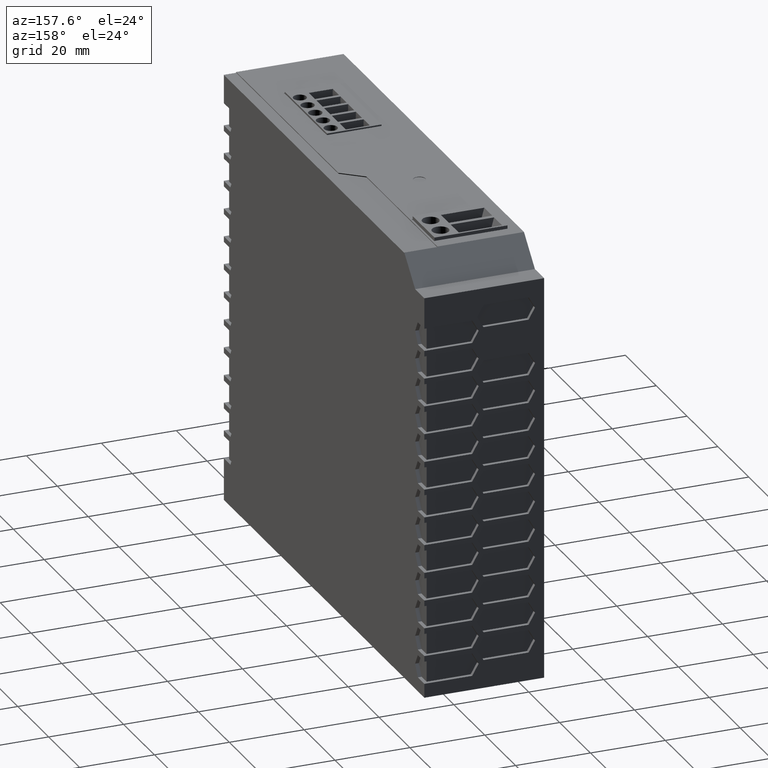
[diagram: clean part render]
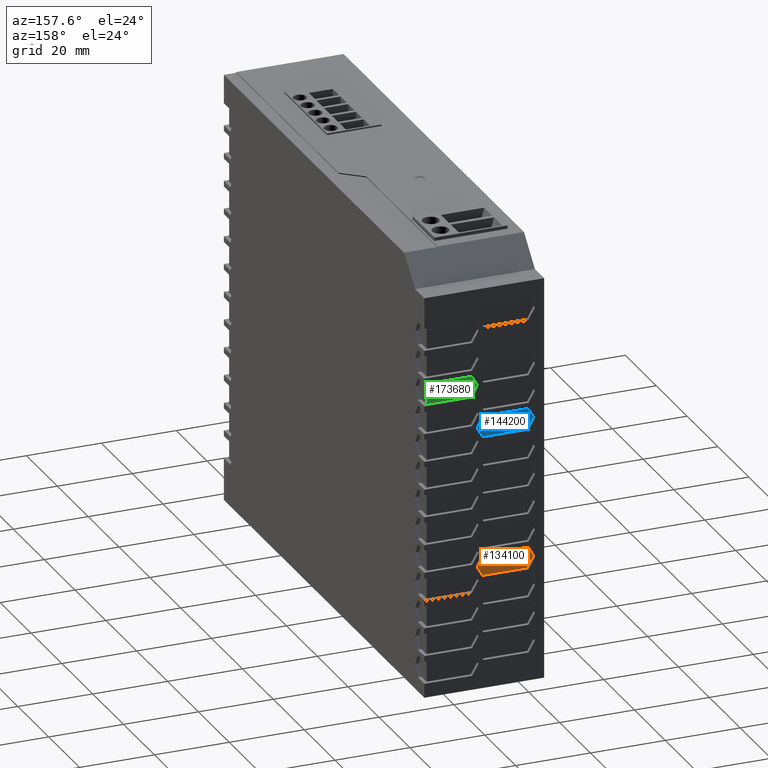
[diagram: same view with three faces highlighted in distinct colors, each labeled with its STEP entity id]
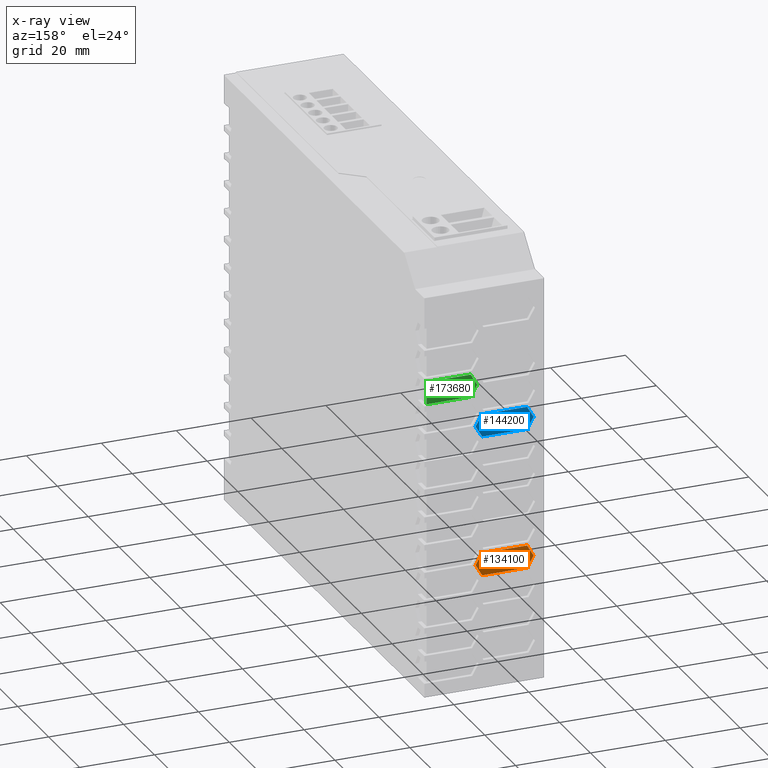
[diagram: x-ray of the same camera — body ghosted, the three highlighted faces saturated]
A machine part, auxiliary view with three faces highlighted in distinct colors.
The next image is the same camera in x-ray (body ghosted, the three faces saturated) — at least one of them is partly hidden behind the body in this view.
Their STEP definitions:

[orange] entity #134100 — the highlighted planar face has unit normal (0, 1, 0).
#125470=CARTESIAN_POINT('',(24.1298974596216,64.,-58.3276047807973));
#125480=DIRECTION('',(0.,1.,-0.));
#125490=DIRECTION('',(-1.,0.,0.));
#125500=AXIS2_PLACEMENT_3D('',#125470,#125480,#125490);
#125510=PLANE('',#125500);
#133600=CARTESIAN_POINT('',(-29.1369845665809,64.,1.));
#133610=DIRECTION('',(0.500000000000017,-0.,-0.866025403784429));
#133620=VECTOR('',#133610,1.);
#133630=LINE('',#133600,#133620);
#133640=CARTESIAN_POINT('',(16.200949192431,64.,-77.5276047807973));
#133650=VERTEX_POINT('',#133640);
#133660=CARTESIAN_POINT('',(17.933,64.,-80.5276047807973));
#133670=VERTEX_POINT('',#133660);
#133680=EDGE_CURVE('',#133650,#133670,#133630,.T.);
#133690=ORIENTED_EDGE('',*,*,#133680,.T.);
#133700=CARTESIAN_POINT('',(32.,64.,-77.5276047807973));
#133710=DIRECTION('',(1.,0.,0.));
#133720=VECTOR('',#133710,1.);
#133730=LINE('',#133700,#133720);
#133740=CARTESIAN_POINT('',(4.16505080756895,64.,-77.5276047807973));
#133750=VERTEX_POINT('',#133740);
#133760=EDGE_CURVE('',#133750,#133650,#133730,.T.);
#133770=ORIENTED_EDGE('',*,*,#133760,.T.);
#133780=CARTESIAN_POINT('',(49.5029845665809,64.,1.));
#133790=DIRECTION('',(0.500000000000017,0.,0.866025403784429));
#133800=VECTOR('',#133790,1.);
#133810=LINE('',#133780,#133800);
#133820=CARTESIAN_POINT('',(2.43300000000052,64.,-80.5276047807964));
#133830=VERTEX_POINT('',#133820);
#133840=EDGE_CURVE('',#133830,#133750,#133810,.T.);
#133850=ORIENTED_EDGE('',*,*,#133840,.T.);
#133860=CARTESIAN_POINT('',(-44.6369845665798,64.,1.));
#133870=DIRECTION('',(-0.500000000000017,0.,0.866025403784429));
#133880=VECTOR('',#133870,1.);
#133890=LINE('',#133860,#133880);
#133900=CARTESIAN_POINT('',(4.16505080757,64.,-83.5276047807973));
#133910=VERTEX_POINT('',#133900);
#133920=EDGE_CURVE('',#133910,#133830,#133890,.T.);
#133930=ORIENTED_EDGE('',*,*,#133920,.T.);
#133940=CARTESIAN_POINT('',(32.,64.,-83.5276047807973));
#133950=DIRECTION('',(-1.,0.,0.));
#133960=VECTOR('',#133950,1.);
#133970=LINE('',#133940,#133960);
#133980=CARTESIAN_POINT('',(16.200949192431,64.,-83.5276047807973));
#133990=VERTEX_POINT('',#133980);
#134000=EDGE_CURVE('',#133990,#133910,#133970,.T.);
#134010=ORIENTED_EDGE('',*,*,#134000,.T.);
#134020=CARTESIAN_POINT('',(65.0029845665809,64.,1.));
#134030=DIRECTION('',(-0.500000000000017,0.,-0.866025403784429));
#134040=VECTOR('',#134030,1.);
#134050=LINE('',#134020,#134040);
#134060=EDGE_CURVE('',#133670,#133990,#134050,.T.);
#134070=ORIENTED_EDGE('',*,*,#134060,.T.);
#134080=EDGE_LOOP('',(#134070,#134010,#133930,#133850,#133770,#133690));
#134090=FACE_OUTER_BOUND('',#134080,.T.);
#134100=ADVANCED_FACE('',(#134090),#125510,.T.);

[blue] entity #144200 — the highlighted planar face has unit normal (0, 1, 0).
#125470=CARTESIAN_POINT('',(24.1298974596216,64.,-58.3276047807973));
#125480=DIRECTION('',(0.,1.,-0.));
#125490=DIRECTION('',(-1.,0.,0.));
#125500=AXIS2_PLACEMENT_3D('',#125470,#125480,#125490);
#125510=PLANE('',#125500);
#143700=CARTESIAN_POINT('',(-7.48634947196894,64.,1.));
#143710=DIRECTION('',(0.500000000000017,-0.,-0.866025403784429));
#143720=VECTOR('',#143710,1.);
#143730=LINE('',#143700,#143720);
#143740=CARTESIAN_POINT('',(16.200949192431,64.,-40.0276047807973));
#143750=VERTEX_POINT('',#143740);
#143760=CARTESIAN_POINT('',(17.933,64.,-43.0276047807973));
#143770=VERTEX_POINT('',#143760);
#143780=EDGE_CURVE('',#143750,#143770,#143730,.T.);
#143790=ORIENTED_EDGE('',*,*,#143780,.T.);
#143800=CARTESIAN_POINT('',(32.,64.,-40.0276047807973));
#143810=DIRECTION('',(1.,0.,0.));
#143820=VECTOR('',#143810,1.);
#143830=LINE('',#143800,#143820);
#143840=CARTESIAN_POINT('',(4.16505080756895,64.,-40.0276047807973));
#143850=VERTEX_POINT('',#143840);
#143860=EDGE_CURVE('',#143850,#143750,#143830,.T.);
#143870=ORIENTED_EDGE('',*,*,#143860,.T.);
#143880=CARTESIAN_POINT('',(27.8523494719689,64.,1.));
#143890=DIRECTION('',(0.500000000000017,0.,0.866025403784429));
#143900=VECTOR('',#143890,1.);
#143910=LINE('',#143880,#143900);
#143920=CARTESIAN_POINT('',(2.43300000000052,64.,-43.0276047807964));
#143930=VERTEX_POINT('',#143920);
#143940=EDGE_CURVE('',#143930,#143850,#143910,.T.);
#143950=ORIENTED_EDGE('',*,*,#143940,.T.);
#143960=CARTESIAN_POINT('',(-22.9863494719679,64.,1.));
#143970=DIRECTION('',(-0.500000000000017,0.,0.866025403784429));
#143980=VECTOR('',#143970,1.);
#143990=LINE('',#143960,#143980);
#144000=CARTESIAN_POINT('',(4.16505080757,64.,-46.0276047807973));
#144010=VERTEX_POINT('',#144000);
#144020=EDGE_CURVE('',#144010,#143930,#143990,.T.);
#144030=ORIENTED_EDGE('',*,*,#144020,.T.);
#144040=CARTESIAN_POINT('',(32.,64.,-46.0276047807973));
#144050=DIRECTION('',(-1.,0.,0.));
#144060=VECTOR('',#144050,1.);
#144070=LINE('',#144040,#144060);
#144080=CARTESIAN_POINT('',(16.200949192431,64.,-46.0276047807973));
#144090=VERTEX_POINT('',#144080);
#144100=EDGE_CURVE('',#144090,#144010,#144070,.T.);
#144110=ORIENTED_EDGE('',*,*,#144100,.T.);
#144120=CARTESIAN_POINT('',(43.3523494719689,64.,1.));
#144130=DIRECTION('',(-0.500000000000017,0.,-0.866025403784429));
#144140=VECTOR('',#144130,1.);
#144150=LINE('',#144120,#144140);
#144160=EDGE_CURVE('',#143770,#144090,#144150,.T.);
#144170=ORIENTED_EDGE('',*,*,#144160,.T.);
#144180=EDGE_LOOP('',(#144170,#144110,#144030,#143950,#143870,#143790));
#144190=FACE_OUTER_BOUND('',#144180,.T.);
#144200=ADVANCED_FACE('',(#144190),#125510,.T.);

[green] entity #173680 — the highlighted planar face has unit normal (0, 1, 0).
#85940=CARTESIAN_POINT('',(31.,64.,1.));
#85950=DIRECTION('',(0.,0.,1.));
#85960=VECTOR('',#85950,1.);
#85970=LINE('',#85940,#85960);
#125470=CARTESIAN_POINT('',(24.1298974596216,64.,-58.3276047807973));
#125480=DIRECTION('',(0.,1.,-0.));
#125490=DIRECTION('',(-1.,0.,0.));
#125500=AXIS2_PLACEMENT_3D('',#125470,#125480,#125490);
#125510=PLANE('',#125500);
#173300=CARTESIAN_POINT('',(31.,64.,-34.7776047807973));
#173310=VERTEX_POINT('',#173300);
#173320=CARTESIAN_POINT('',(31.,64.,-28.7776047807973));
#173330=VERTEX_POINT('',#173320);
#173340=EDGE_CURVE('',#173310,#173330,#85970,.T.);
#173350=ORIENTED_EDGE('',*,*,#173340,.F.);
#173360=CARTESIAN_POINT('',(32.,64.,-28.7776047807973));
#173370=DIRECTION('',(1.,0.,0.));
#173380=VECTOR('',#173370,1.);
#173390=LINE('',#173360,#173380);
#173400=CARTESIAN_POINT('',(19.232050807569,64.,-28.7776047807973));
#173410=VERTEX_POINT('',#173400);
#173420=EDGE_CURVE('',#173410,#173330,#173390,.T.);
#173430=ORIENTED_EDGE('',*,*,#173420,.T.);
#173440=CARTESIAN_POINT('',(36.4241589435854,64.,1.));
#173450=DIRECTION('',(0.500000000000017,0.,0.866025403784429));
#173460=VECTOR('',#173450,1.);
#173470=LINE('',#173440,#173460);
#173480=CARTESIAN_POINT('',(17.5,64.,-31.7776047807973));
#173490=VERTEX_POINT('',#173480);
#173500=EDGE_CURVE('',#173490,#173410,#173470,.T.);
#173510=ORIENTED_EDGE('',*,*,#173500,.T.);
#173520=CARTESIAN_POINT('',(-1.42415894358535,64.,1.));
#173530=DIRECTION('',(-0.500000000000017,0.,0.866025403784429));
#173540=VECTOR('',#173530,1.);
#173550=LINE('',#173520,#173540);
#173560=CARTESIAN_POINT('',(19.232050807569,64.,-34.7776047807973));
#173570=VERTEX_POINT('',#173560);
#173580=EDGE_CURVE('',#173570,#173490,#173550,.T.);
#173590=ORIENTED_EDGE('',*,*,#173580,.T.);
#173600=CARTESIAN_POINT('',(32.,64.,-34.7776047807973));
#173610=DIRECTION('',(-1.,0.,0.));
#173620=VECTOR('',#173610,1.);
#173630=LINE('',#173600,#173620);
#173640=EDGE_CURVE('',#173310,#173570,#173630,.T.);
#173650=ORIENTED_EDGE('',*,*,#173640,.T.);
#173660=EDGE_LOOP('',(#173650,#173590,#173510,#173430,#173350));
#173670=FACE_OUTER_BOUND('',#173660,.T.);
#173680=ADVANCED_FACE('',(#173670),#125510,.T.);